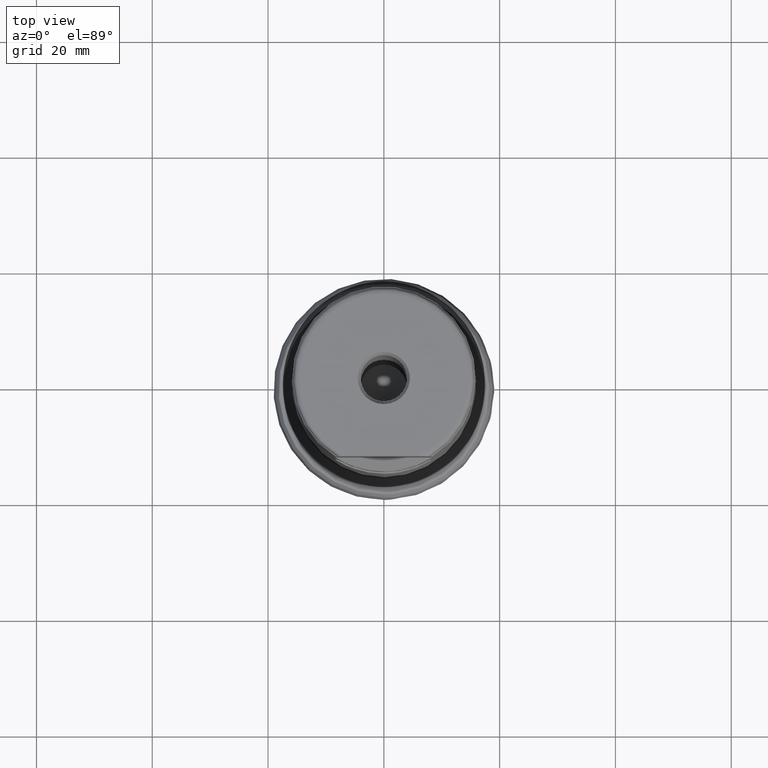
[diagram: clean part render]
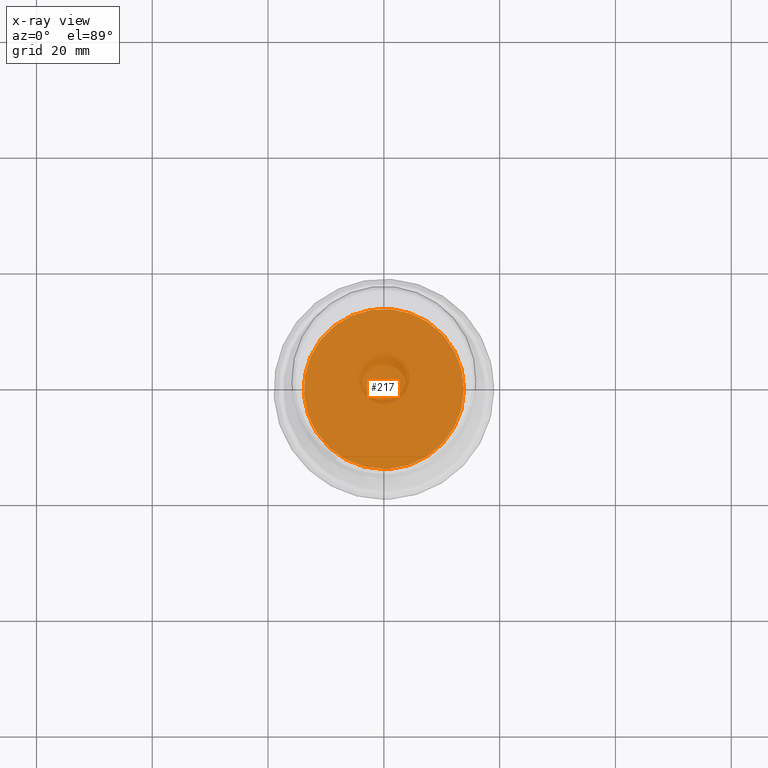
[diagram: x-ray — body ghosted, one internal face saturated and labeled with its STEP entity id]
A machine part, top view, then the same camera in x-ray: the body is ghosted and one INTERNAL B-rep face — a face not visible from any outside direction — is saturated and labeled: STEP entity #217.
In plain terms, the highlighted planar face has unit normal (0, 0, 1).
Its self-contained STEP definition (entity closure, byte-faithful):
#165=PLANE('',#863);
#185=FACE_OUTER_BOUND('',#416,.T.);
#217=ADVANCED_FACE('',(#185),#165,.T.);
#268=CIRCLE('',#862,13.8333363719491);
#416=EDGE_LOOP('',(#593));
#593=ORIENTED_EDGE('',*,*,#742,.T.);
#674=VERTEX_POINT('',#1486);
#742=EDGE_CURVE('',#674,#674,#268,.T.);
#862=AXIS2_PLACEMENT_3D('',#1485,#1008,#1009);
#863=AXIS2_PLACEMENT_3D('',#1487,#1010,#1011);
#1008=DIRECTION('',(0.,1.17145536458252E-15,1.));
#1009=DIRECTION('',(0.,-1.,1.19131586037314E-15));
#1010=DIRECTION('',(0.,1.17145536458252E-15,1.));
#1011=DIRECTION('',(0.,-1.,1.17180570802233E-15));
#1485=CARTESIAN_POINT('',(0.,6.07765488266908E-15,5.1881233091924));
#1486=CARTESIAN_POINT('',(0.,-13.8333363719491,5.18812330919242));
#1487=CARTESIAN_POINT('',(0.,6.07765488266908E-15,5.1881233091924));